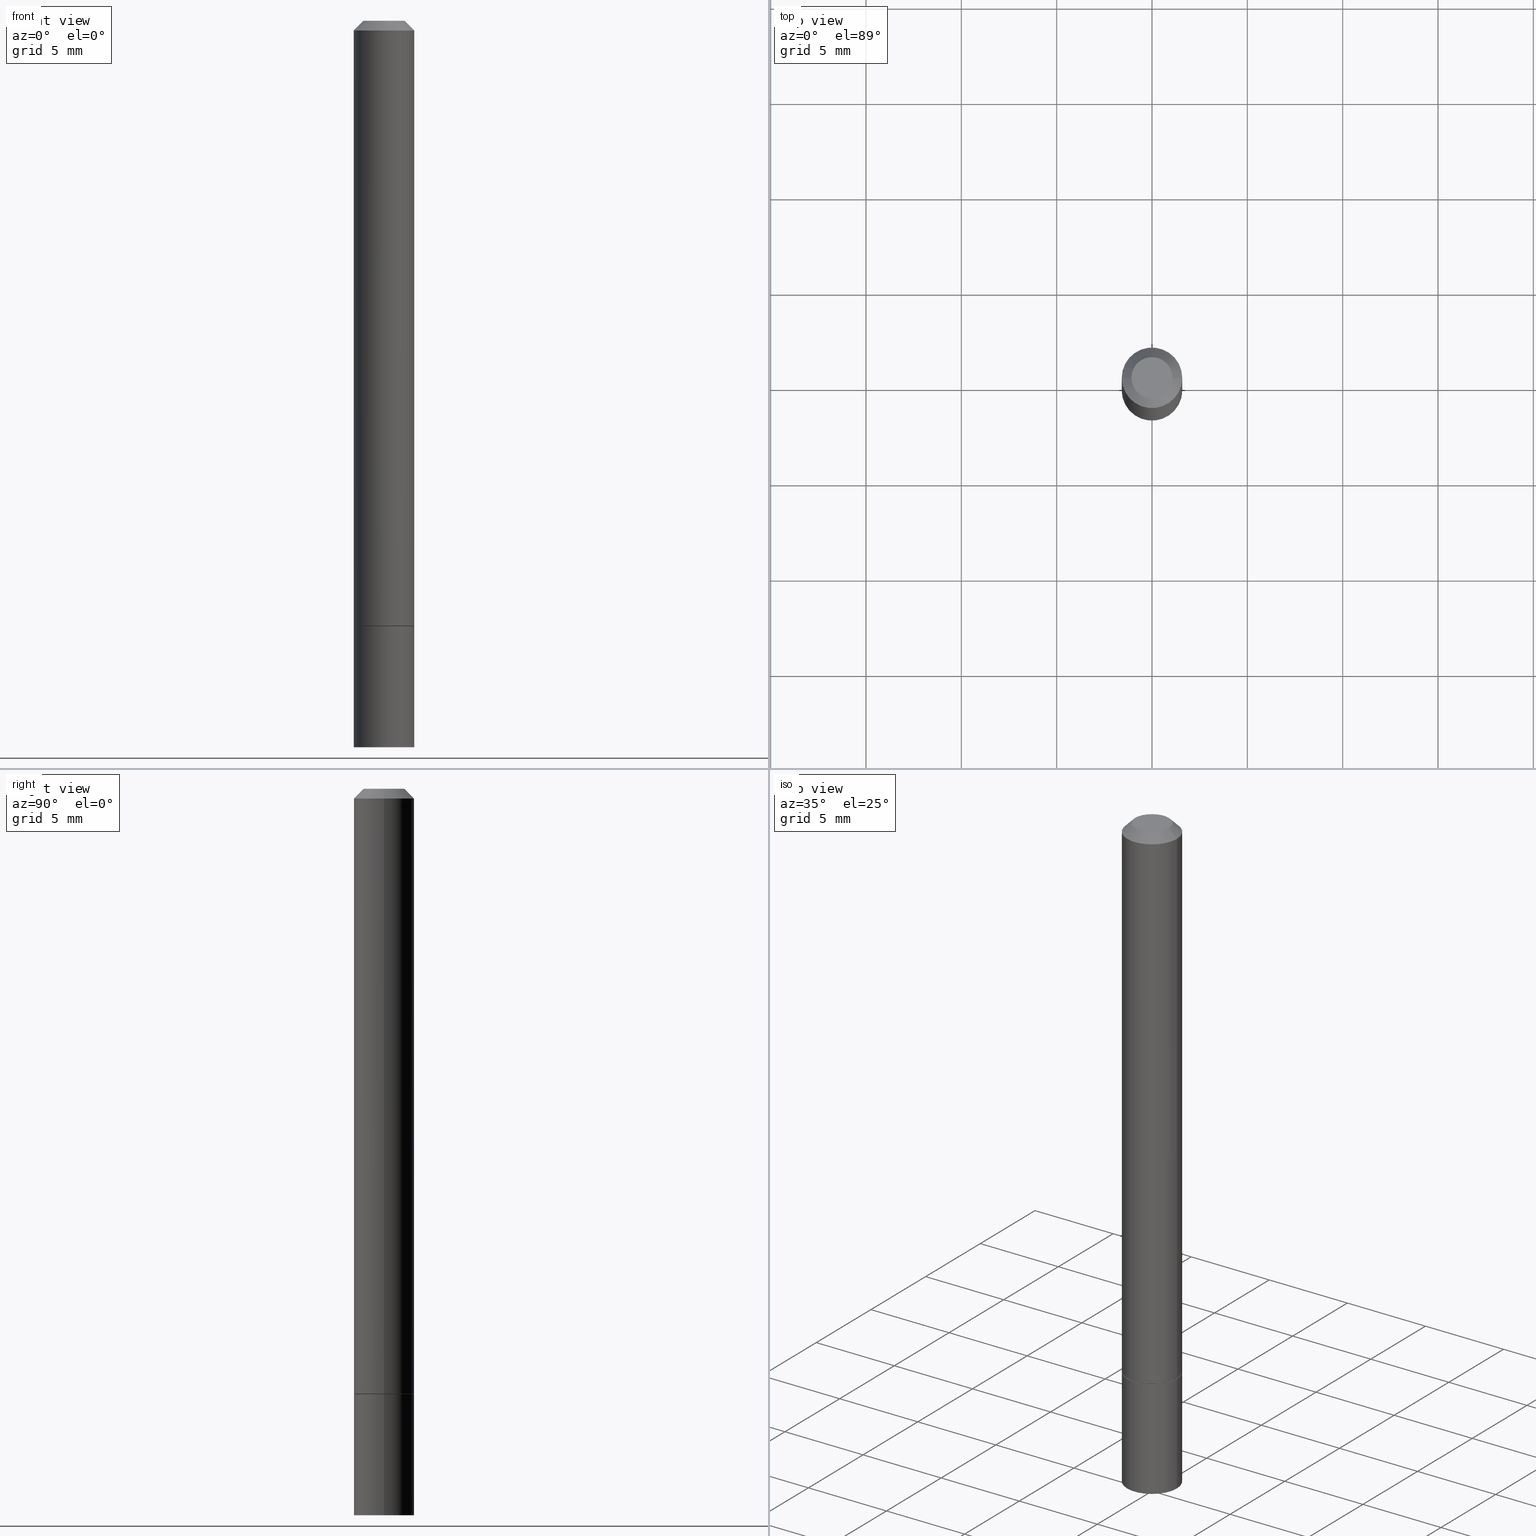
[diagram: canonical four-view strip — front | top / right | iso, engineering-drawing reading convention]
A machine part, canonical four-view strip (front | top / right | iso — engineering-drawing reading convention). The complete STEP part file that produces these views, byte-faithful:
ISO-10303-21;
HEADER;
FILE_DESCRIPTION (( 'STEP AP203' ),
    '1' );
FILE_NAME ('31705.STEP',
    '2024-02-27T13:14:47',
    ( '' ),
    ( '' ),
    'SwSTEP 2.0',
    'SolidWorks 2023',
    '' );
FILE_SCHEMA (( 'CONFIG_CONTROL_DESIGN' ));
ENDSEC;

DATA;
#1 = PRODUCT_RELATED_PRODUCT_CATEGORY ( 'detail', '', ( #160 ) ) ;
#2 = SECURITY_CLASSIFICATION_LEVEL ( 'unclassified' ) ;
#3 = CARTESIAN_POINT ( 'NONE',  ( 9.394662729016977403E-46, -1.341308853342402453E-31, -3.841661241090370459E-17 ) ) ;
#4 = AXIS2_PLACEMENT_3D ( 'NONE', #127, #197, #107 ) ;
#5 = ORIENTED_EDGE ( 'NONE', *, *, #173, .T. ) ;
#6 = DIRECTION ( 'NONE',  ( -2.445468806185136597E-29, 3.491481338843145583E-15, 1.000000000000000000 ) ) ;
#7 = EDGE_CURVE ( 'NONE', #62, #305, #114, .T. ) ;
#8 = CLOSED_SHELL ( 'NONE', ( #19, #116, #201, #289, #49, #101, #189, #292 ) ) ;
#9 = LOCAL_TIME ( 8, 14, 47.00000000000000000, #271 ) ;
#10 = DIRECTION ( 'NONE',  ( 1.000000000000000000, -6.982962677686267499E-15, 4.870577812114081924E-29 ) ) ;
#11 = DIRECTION ( 'NONE',  ( 1.000000000000000000, -6.982962677686267499E-15, 4.876176775795935793E-29 ) ) ;
#12 = APPROVAL ( #203, 'UNSPECIFIED' ) ;
#13 = AXIS2_PLACEMENT_3D ( 'NONE', #262, #348, #36 ) ;
#14 = DIRECTION ( 'NONE',  ( 1.000000000000000000, -6.982962677686261189E-15, 0.000000000000000000 ) ) ;
#15 = VERTEX_POINT ( 'NONE', #217 ) ;
#16 = DIRECTION ( 'NONE',  ( -2.445468806185136877E-29, 3.491481338843145188E-15, 1.000000000000000000 ) ) ;
#17 = AXIS2_PLACEMENT_3D ( 'NONE', #304, #166, #58 ) ;
#18 = VECTOR ( 'NONE', #46, 39.37007874015748143 ) ;
#19 = ADVANCED_FACE ( 'NONE', ( #100 ), #277, .T. ) ;
#20 = LINE ( 'NONE', #226, #122 ) ;
#21 = CALENDAR_DATE ( 2024, 27, 2 ) ;
#22 = DIRECTION ( 'NONE',  ( -2.445468806185136597E-29, 3.491481338843145583E-15, 1.000000000000000000 ) ) ;
#23 = CARTESIAN_POINT ( 'NONE',  ( -0.04250000000000002387, 3.316907271900973138E-16, -3.841661241090589861E-17 ) ) ;
#24 = AXIS2_PLACEMENT_3D ( 'NONE', #3, #224, #137 ) ;
#25 = LOCAL_TIME ( 8, 14, 47.00000000000000000, #300 ) ;
#26 = PERSON_AND_ORGANIZATION_ROLE ( 'design_owner' ) ;
#27 = EDGE_CURVE ( 'NONE', #205, #305, #141, .T. ) ;
#28 = ORIENTED_EDGE ( 'NONE', *, *, #95, .F. ) ;
#29 = DIRECTION ( 'NONE',  ( -1.000000000000000000, 6.982962677686265922E-15, -4.876176775795935793E-29 ) ) ;
#30 = CARTESIAN_POINT ( 'NONE',  ( 0.000000000000000000, 0.000000000000000000, 0.000000000000000000 ) ) ;
#31 = EDGE_LOOP ( 'NONE', ( #42, #93, #188, #163 ) ) ;
#32 = CYLINDRICAL_SURFACE ( 'NONE', #211, 0.06250000000000001388 ) ;
#33 = LINE ( 'NONE', #288, #115 ) ;
#34 = APPROVAL_ROLE ( '' ) ;
#35 = CARTESIAN_POINT ( 'NONE',  ( 0.06250000000000001388, -4.364351673553918173E-16, 3.047610484872460571E-30 ) ) ;
#36 = DIRECTION ( 'NONE',  ( 1.000000000000000000, -6.982962677686269077E-15, 0.000000000000000000 ) ) ;
#37 = ADVANCED_FACE ( 'NONE', ( #363 ), #333, .F. ) ;
#38 = DIRECTION ( 'NONE',  ( -2.445468806185136597E-29, 3.491481338843145583E-15, 1.000000000000000000 ) ) ;
#39 = EDGE_LOOP ( 'NONE', ( #246, #94 ) ) ;
#40 = DIRECTION ( 'NONE',  ( 1.000000000000000000, -6.982962677686261189E-15, 0.000000000000000000 ) ) ;
#41 =( LENGTH_UNIT ( ) NAMED_UNIT ( * ) SI_UNIT ( $, .METRE. ) );
#42 = ORIENTED_EDGE ( 'NONE', *, *, #236, .T. ) ;
#43 = PERSON_AND_ORGANIZATION_ROLE ( 'creator' ) ;
#44 = DIRECTION ( 'NONE',  ( -2.445468806185136877E-29, 3.491481338843145188E-15, 1.000000000000000000 ) ) ;
#45 = ORIENTED_EDGE ( 'NONE', *, *, #7, .F. ) ;
#46 = DIRECTION ( 'NONE',  ( -0.7071067811866441621, 7.493145998870704414E-15, 0.7071067811864508723 ) ) ;
#47 = DIRECTION ( 'NONE',  ( 1.000000000000000000, -6.982962677686266711E-15, 0.000000000000000000 ) ) ;
#48 = PERSON_AND_ORGANIZATION ( #68, #233 ) ;
#49 = ADVANCED_FACE ( 'NONE', ( #52 ), #249, .T. ) ;
#50 = CIRCLE ( 'NONE', #255, 0.06250000000000008327 ) ;
#51 = ORIENTED_EDGE ( 'NONE', *, *, #69, .T. ) ;
#52 = FACE_OUTER_BOUND ( 'NONE', #248, .T. ) ;
#53 = DIRECTION ( 'NONE',  ( 1.000000000000000000, -6.982962677686267499E-15, 4.876176775795935793E-29 ) ) ;
#54 = ADVANCED_BREP_SHAPE_REPRESENTATION ( '31705', ( #191, #309, #306 ), #278 ) ;
#55 = EDGE_CURVE ( 'NONE', #215, #205, #366, .T. ) ;
#56 = ORIENTED_EDGE ( 'NONE', *, *, #83, .F. ) ;
#57 = CARTESIAN_POINT ( 'NONE',  ( 0.000000000000000000, 0.000000000000000000, 0.000000000000000000 ) ) ;
#58 = DIRECTION ( 'NONE',  ( 1.000000000000000000, -6.982962677686268288E-15, 0.000000000000000000 ) ) ;
#59 = CC_DESIGN_PERSON_AND_ORGANIZATION_ASSIGNMENT ( #111, #106, ( #162 ) ) ;
#60 = AXIS2_PLACEMENT_3D ( 'NONE', #227, #22, #272 ) ;
#61 = APPROVAL_PERSON_ORGANIZATION ( #344, #12, #238 ) ;
#62 = VERTEX_POINT ( 'NONE', #308 ) ;
#63 = ADVANCED_FACE ( 'NONE', ( #202 ), #172, .T. ) ;
#64 = AXIS2_PLACEMENT_3D ( 'NONE', #113, #6, #117 ) ;
#65 = ORIENTED_EDGE ( 'NONE', *, *, #329, .T. ) ;
#66 = PRODUCT_DEFINITION_SHAPE ( 'NONE', 'NONE',  #158 ) ;
#67 = EDGE_LOOP ( 'NONE', ( #51, #5 ) ) ;
#68 = PERSON ( 'UNSPECIFIED', 'UNSPECIFIED', 'UNSPECIFIED', ('UNSPECIFIED'), ('UNSPECIFIED'), ('UNSPECIFIED') ) ;
#69 = EDGE_CURVE ( 'NONE', #301, #62, #225, .T. ) ;
#70 = VERTEX_POINT ( 'NONE', #234 ) ;
#71 = PERSON_AND_ORGANIZATION ( #68, #233 ) ;
#72 = AXIS2_PLACEMENT_3D ( 'NONE', #214, #92, #265 ) ;
#73 = CARTESIAN_POINT ( 'NONE',  ( 3.668203209277704895E-29, -5.237222008264718177E-15, -1.500000000000000222 ) ) ;
#74 = CARTESIAN_POINT ( 'NONE',  ( 3.056836007731420185E-29, -4.364351673553931682E-15, -1.249999999999999778 ) ) ;
#75 = CARTESIAN_POINT ( 'NONE',  ( -0.06250000000000001388, 4.440892098500627148E-16, -3.074334431409317165E-30 ) ) ;
#76 = DIRECTION ( 'NONE',  ( -2.445468806185136877E-29, 3.491481338843145188E-15, 1.000000000000000000 ) ) ;
#77 = CC_DESIGN_PERSON_AND_ORGANIZATION_ASSIGNMENT ( #164, #43, ( #158 ) ) ;
#78 = CARTESIAN_POINT ( 'NONE',  ( 3.056836007731421306E-29, -4.364351673553932471E-15, -1.250000000000000000 ) ) ;
#79 = DIRECTION ( 'NONE',  ( -2.445468806185136597E-29, 3.491481338843145583E-15, 1.000000000000000000 ) ) ;
#80 = AXIS2_PLACEMENT_3D ( 'NONE', #230, #199, #168 ) ;
#81 = APPLICATION_CONTEXT ( 'configuration controlled 3d designs of mechanical parts and assemblies' ) ;
#82 = CALENDAR_DATE ( 2024, 27, 2 ) ;
#83 = EDGE_CURVE ( 'NONE', #301, #205, #20, .T. ) ;
#84 = DATE_AND_TIME ( #82, #134 ) ;
#85 = APPROVAL_STATUS ( 'not_yet_approved' ) ;
#86 = ORIENTED_EDGE ( 'NONE', *, *, #316, .T. ) ;
#87 = CLOSED_SHELL ( 'NONE', ( #210, #63, #37, #318 ) ) ;
#88 = ORIENTED_EDGE ( 'NONE', *, *, #187, .T. ) ;
#89 = DESIGN_CONTEXT ( 'detailed design', #81, 'design' ) ;
#90 = FACE_OUTER_BOUND ( 'NONE', #67, .T. ) ;
#91 = EDGE_LOOP ( 'NONE', ( #131, #356, #322, #212 ) ) ;
#92 = DIRECTION ( 'NONE',  ( -2.445468806185136597E-29, 3.491481338843145583E-15, 1.000000000000000000 ) ) ;
#93 = ORIENTED_EDGE ( 'NONE', *, *, #55, .T. ) ;
#94 = ORIENTED_EDGE ( 'NONE', *, *, #283, .F. ) ;
#95 = EDGE_CURVE ( 'NONE', #251, #156, #298, .T. ) ;
#96 = DIRECTION ( 'NONE',  ( 2.438088387897960049E-29, -3.491481338843145188E-15, -1.000000000000000000 ) ) ;
#97 = DIRECTION ( 'NONE',  ( -2.445468806185136597E-29, 3.491481338843145583E-15, 1.000000000000000000 ) ) ;
#98 = CONICAL_SURFACE ( 'NONE', #313, 0.06249999999999995143, 0.7853981633974460586 ) ;
#99 = LOCAL_TIME ( 8, 14, 47.00000000000000000, #140 ) ;
#100 = FACE_OUTER_BOUND ( 'NONE', #109, .T. ) ;
#101 = ADVANCED_FACE ( 'NONE', ( #147 ), #177, .T. ) ;
#102 = VERTEX_POINT ( 'NONE', #286 ) ;
#103 = ORIENTED_EDGE ( 'NONE', *, *, #229, .T. ) ;
#104 = DIRECTION ( 'NONE',  ( 1.000000000000000000, -6.982962677686268288E-15, 0.000000000000000000 ) ) ;
#105 = APPROVAL_DATE_TIME ( #303, #254 ) ;
#106 = PERSON_AND_ORGANIZATION_ROLE ( 'classification_officer' ) ;
#107 = DIRECTION ( 'NONE',  ( 1.000000000000000000, -6.982962677686267499E-15, 4.876176775795935793E-29 ) ) ;
#108 = APPROVAL_PERSON_ORGANIZATION ( #71, #254, #135 ) ;
#109 = EDGE_LOOP ( 'NONE', ( #319, #121, #228, #337 ) ) ;
#110 = FACE_OUTER_BOUND ( 'NONE', #295, .T. ) ;
#111 = PERSON_AND_ORGANIZATION ( #68, #233 ) ;
#112 = CARTESIAN_POINT ( 'NONE',  ( -0.06150000000000001299, -3.922069436713247672E-15, -1.249999999999999778 ) ) ;
#113 = CARTESIAN_POINT ( 'NONE',  ( 3.056836007731421306E-29, -4.364351673553932471E-15, -1.250000000000000000 ) ) ;
#114 = LINE ( 'NONE', #237, #161 ) ;
#115 = VECTOR ( 'NONE', #76, 39.37007874015748143 ) ;
#116 = ADVANCED_FACE ( 'NONE', ( #291 ), #32, .T. ) ;
#117 = DIRECTION ( 'NONE',  ( 1.000000000000000000, -6.982962677686269077E-15, 0.000000000000000000 ) ) ;
#118 = DIMENSIONAL_EXPONENTS ( 1.000000000000000000, 0.000000000000000000, 0.000000000000000000, 0.000000000000000000, 0.000000000000000000, 0.000000000000000000, 0.000000000000000000 ) ;
#119 = CARTESIAN_POINT ( 'NONE',  ( -0.06249999999999995143, 3.666055405785282233E-16, -0.02000000000000005246 ) ) ;
#120 = CC_DESIGN_DATE_AND_TIME_ASSIGNMENT ( #129, #358, ( #158 ) ) ;
#121 = ORIENTED_EDGE ( 'NONE', *, *, #354, .T. ) ;
#122 = VECTOR ( 'NONE', #331, 39.37007874015748143 ) ;
#123 = CC_DESIGN_PERSON_AND_ORGANIZATION_ASSIGNMENT ( #136, #253, ( #294 ) ) ;
#124 = AXIS2_PLACEMENT_3D ( 'NONE', #148, #260, #10 ) ;
#125 = DIRECTION ( 'NONE',  ( -2.445468806185136597E-29, 3.491481338843145583E-15, 1.000000000000000000 ) ) ;
#126 = CARTESIAN_POINT ( 'NONE',  ( 0.000000000000000000, 0.000000000000000000, 0.000000000000000000 ) ) ;
#127 = CARTESIAN_POINT ( 'NONE',  ( 0.000000000000000000, 0.000000000000000000, 0.000000000000000000 ) ) ;
#128 = APPLICATION_CONTEXT ( 'configuration controlled 3d designs of mechanical parts and assemblies' ) ;
#129 = DATE_AND_TIME ( #21, #9 ) ;
#130 = CARTESIAN_POINT ( 'NONE',  ( 4.890937612370285420E-31, -6.982962677686308865E-17, -0.02000000000000005246 ) ) ;
#131 = ORIENTED_EDGE ( 'NONE', *, *, #222, .F. ) ;
#132 = CARTESIAN_POINT ( 'NONE',  ( 0.06249999999999995143, -4.986107516375834292E-16, -0.02000000000000005246 ) ) ;
#133 = CIRCLE ( 'NONE', #170, 0.06150000000000001299 ) ;
#134 = LOCAL_TIME ( 8, 14, 47.00000000000000000, #342 ) ;
#135 = APPROVAL_ROLE ( '' ) ;
#136 = PERSON_AND_ORGANIZATION ( #68, #233 ) ;
#137 = DIRECTION ( 'NONE',  ( 1.000000000000000000, -6.982962677686267499E-15, 4.870577812114081924E-29 ) ) ;
#138 = ORIENTED_EDGE ( 'NONE', *, *, #275, .T. ) ;
#139 = EDGE_CURVE ( 'NONE', #144, #305, #33, .T. ) ;
#140 = COORDINATED_UNIVERSAL_TIME_OFFSET ( 5, 0, .BEHIND. ) ;
#141 = CIRCLE ( 'NONE', #243, 0.06249999999999995143 ) ;
#142 = DIRECTION ( 'NONE',  ( 1.000000000000000000, -6.982962677686268288E-15, 0.000000000000000000 ) ) ;
#143 = LOCAL_TIME ( 8, 14, 47.00000000000000000, #157 ) ;
#144 = VERTEX_POINT ( 'NONE', #179 ) ;
#145 = DIRECTION ( 'NONE',  ( -2.445468806185136877E-29, 3.491481338843145188E-15, 1.000000000000000000 ) ) ;
#146 = UNCERTAINTY_MEASURE_WITH_UNIT (LENGTH_MEASURE( 1.000000000000000082E-05 ), #355, 'distance_accuracy_value', 'NONE');
#147 = FACE_OUTER_BOUND ( 'NONE', #324, .T. ) ;
#148 = CARTESIAN_POINT ( 'NONE',  ( 9.394662729016977403E-46, -1.341308853342402453E-31, -3.841661241090370459E-17 ) ) ;
#149 = CARTESIAN_POINT ( 'NONE',  ( 4.890937612370285420E-31, -6.982962677686308865E-17, -0.02000000000000005246 ) ) ;
#150 = APPROVAL ( #85, 'UNSPECIFIED' ) ;
#151 = DATE_AND_TIME ( #320, #143 ) ;
#152 = DIRECTION ( 'NONE',  ( -1.000000000000000000, 6.982962677686266711E-15, 0.000000000000000000 ) ) ;
#153 = CIRCLE ( 'NONE', #360, 0.06250000000000001388 ) ;
#154 = CC_DESIGN_SECURITY_CLASSIFICATION ( #162, ( #294 ) ) ;
#155 = CARTESIAN_POINT ( 'NONE',  ( 2.967759138016664535E-16, 0.04250000000000002387, -1.675962631062856399E-16 ) ) ;
#156 = VERTEX_POINT ( 'NONE', #112 ) ;
#157 = COORDINATED_UNIVERSAL_TIME_OFFSET ( 5, 0, .BEHIND. ) ;
#158 = PRODUCT_DEFINITION ( 'UNKNOWN', '', #294, #89 ) ;
#159 = CARTESIAN_POINT ( 'NONE',  ( 0.06150000000000001299, -4.793803878231636549E-15, -1.249999999999999778 ) ) ;
#160 = PRODUCT ( '31705', '31705', '', ( #223 ) ) ;
#161 = VECTOR ( 'NONE', #180, 39.37007874015748143 ) ;
#162 = SECURITY_CLASSIFICATION ( '', '', #2 ) ;
#163 = ORIENTED_EDGE ( 'NONE', *, *, #139, .F. ) ;
#164 = PERSON_AND_ORGANIZATION ( #68, #233 ) ;
#165 = DIRECTION ( 'NONE',  ( -1.000000000000000000, 6.982962677686265922E-15, -4.876176775795935793E-29 ) ) ;
#166 = DIRECTION ( 'NONE',  ( -2.445468806185136597E-29, 3.491481338843145583E-15, 1.000000000000000000 ) ) ;
#167 = ORIENTED_EDGE ( 'NONE', *, *, #27, .F. ) ;
#168 = DIRECTION ( 'NONE',  ( 1.000000000000000000, -6.982962677686267499E-15, 4.876176775795935793E-29 ) ) ;
#169 = AXIS2_PLACEMENT_3D ( 'NONE', #57, #79, #53 ) ;
#170 = AXIS2_PLACEMENT_3D ( 'NONE', #74, #125, #104 ) ;
#171 = CARTESIAN_POINT ( 'NONE',  ( 4.364351673554222871E-16, 0.06249999999999565625, -1.250000000000000222 ) ) ;
#172 = PLANE ( 'NONE',  #207 ) ;
#173 = EDGE_CURVE ( 'NONE', #62, #301, #290, .T. ) ;
#174 = CARTESIAN_POINT ( 'NONE',  ( -0.06250000000000008327, -1.771255699645910018E-15, -1.248999999999999888 ) ) ;
#175 = VERTEX_POINT ( 'NONE', #235 ) ;
#176 = CALENDAR_DATE ( 2024, 27, 2 ) ;
#177 = CONICAL_SURFACE ( 'NONE', #219, 0.06150000000000001299, 0.7853981633975849475 ) ;
#178 = CARTESIAN_POINT ( 'NONE',  ( -0.06250000000000001388, 4.440892098500627148E-16, -3.074334431409317165E-30 ) ) ;
#179 = CARTESIAN_POINT ( 'NONE',  ( 0.06250000000000008327, -4.797295359570480345E-15, -1.248999999999999888 ) ) ;
#180 = DIRECTION ( 'NONE',  ( 0.7071067811865459074, -7.319954787623249734E-15, -0.7071067811865491270 ) ) ;
#181 = PERSON_AND_ORGANIZATION_ROLE ( 'creator' ) ;
#182 = DIRECTION ( 'NONE',  ( -2.445468806185136597E-29, 3.491481338843145583E-15, 1.000000000000000000 ) ) ;
#183 = CIRCLE ( 'NONE', #299, 0.06250000000000008327 ) ;
#184 = FACE_OUTER_BOUND ( 'NONE', #312, .T. ) ;
#185 = PLANE ( 'NONE',  #263 ) ;
#186 = ORIENTED_EDGE ( 'NONE', *, *, #139, .T. ) ;
#187 = EDGE_CURVE ( 'NONE', #70, #15, #239, .T. ) ;
#188 = ORIENTED_EDGE ( 'NONE', *, *, #329, .F. ) ;
#189 = ADVANCED_FACE ( 'NONE', ( #240 ), #204, .F. ) ;
#190 = ORIENTED_EDGE ( 'NONE', *, *, #340, .T. ) ;
#191 = MANIFOLD_SOLID_BREP ( 'Body-Move/Copy2[1]', #87 ) ;
#192 = CIRCLE ( 'NONE', #72, 0.06250000000000001388 ) ;
#193 = APPROVAL_STATUS ( 'not_yet_approved' ) ;
#194 = ORIENTED_EDGE ( 'NONE', *, *, #340, .F. ) ;
#195 = APPLICATION_PROTOCOL_DEFINITION ( 'international standard', 'config_control_design', 1994, #81 ) ;
#196 = APPLICATION_PROTOCOL_DEFINITION ( 'international standard', 'config_control_design', 1994, #128 ) ;
#197 = DIRECTION ( 'NONE',  ( -2.445468806185136597E-29, 3.491481338843145583E-15, 1.000000000000000000 ) ) ;
#198 = ORIENTED_EDGE ( 'NONE', *, *, #173, .F. ) ;
#199 = DIRECTION ( 'NONE',  ( -2.445468806185136597E-29, 3.491481338843145583E-15, 1.000000000000000000 ) ) ;
#200 = VECTOR ( 'NONE', #145, 39.37007874015748143 ) ;
#201 = ADVANCED_FACE ( 'NONE', ( #110 ), #328, .T. ) ;
#202 = FACE_OUTER_BOUND ( 'NONE', #39, .T. ) ;
#203 = APPROVAL_STATUS ( 'not_yet_approved' ) ;
#204 = PLANE ( 'NONE',  #266 ) ;
#205 = VERTEX_POINT ( 'NONE', #119 ) ;
#206 = DIRECTION ( 'NONE',  ( -2.438088387897960049E-29, 3.491481338843145188E-15, 1.000000000000000000 ) ) ;
#207 = AXIS2_PLACEMENT_3D ( 'NONE', #281, #269, #29 ) ;
#208 = DIRECTION ( 'NONE',  ( 0.7071067811866441621, -2.468850131083269169E-15, 0.7071067811864508723 ) ) ;
#209 = SHAPE_DEFINITION_REPRESENTATION ( #66, #54 ) ;
#210 = ADVANCED_FACE ( 'NONE', ( #261 ), #338, .T. ) ;
#211 = AXIS2_PLACEMENT_3D ( 'NONE', #30, #343, #11 ) ;
#212 = ORIENTED_EDGE ( 'NONE', *, *, #187, .F. ) ;
#213 = PERSON_AND_ORGANIZATION ( #68, #233 ) ;
#214 = CARTESIAN_POINT ( 'NONE',  ( 3.668203209277704895E-29, -5.237222008264718177E-15, -1.500000000000000222 ) ) ;
#215 = VERTEX_POINT ( 'NONE', #174 ) ;
#216 = CARTESIAN_POINT ( 'NONE',  ( 4.890937612370285420E-31, -6.982962677686308865E-17, -0.02000000000000005246 ) ) ;
#217 = CARTESIAN_POINT ( 'NONE',  ( 0.06250000000000001388, -4.800786840909324141E-15, -1.250000000000000000 ) ) ;
#218 = EDGE_LOOP ( 'NONE', ( #86, #273, #285, #353 ) ) ;
#219 = AXIS2_PLACEMENT_3D ( 'NONE', #257, #182, #142 ) ;
#220 = CC_DESIGN_APPROVAL ( #12, ( #294 ) ) ;
#221 =( NAMED_UNIT ( * ) PLANE_ANGLE_UNIT ( ) SI_UNIT ( $, .RADIAN. ) );
#222 = EDGE_CURVE ( 'NONE', #102, #70, #284, .T. ) ;
#223 = MECHANICAL_CONTEXT ( 'NONE', #128, 'mechanical' ) ;
#224 = DIRECTION ( 'NONE',  ( -2.445468806185136597E-29, 3.491481338843145583E-15, 1.000000000000000000 ) ) ;
#225 = CIRCLE ( 'NONE', #24, 0.04250000000000002387 ) ;
#226 = CARTESIAN_POINT ( 'NONE',  ( -0.06249999999999995143, 3.666055405785282233E-16, -0.02000000000000005246 ) ) ;
#227 = CARTESIAN_POINT ( 'NONE',  ( 3.056836007731420185E-29, -4.364351673553931682E-15, -1.249999999999999778 ) ) ;
#228 = ORIENTED_EDGE ( 'NONE', *, *, #236, .F. ) ;
#229 = EDGE_CURVE ( 'NONE', #251, #144, #256, .T. ) ;
#230 = CARTESIAN_POINT ( 'NONE',  ( 0.000000000000000000, 0.000000000000000000, 0.000000000000000000 ) ) ;
#231 = EDGE_LOOP ( 'NONE', ( #28, #194 ) ) ;
#232 = CIRCLE ( 'NONE', #13, 0.06250000000000001388 ) ;
#233 = ORGANIZATION ( 'UNSPECIFIED', 'UNSPECIFIED', '' ) ;
#234 = CARTESIAN_POINT ( 'NONE',  ( -0.06250000000000001388, -4.356697631059263102E-15, -1.250000000000000000 ) ) ;
#235 = CARTESIAN_POINT ( 'NONE',  ( 0.06250000000000001388, -5.673657175620109846E-15, -1.500000000000000222 ) ) ;
#236 = EDGE_CURVE ( 'NONE', #144, #215, #50, .T. ) ;
#237 = CARTESIAN_POINT ( 'NONE',  ( 0.06249999999999995143, -4.986107516375834292E-16, -0.02000000000000005246 ) ) ;
#238 = APPROVAL_ROLE ( '' ) ;
#239 = CIRCLE ( 'NONE', #64, 0.06250000000000001388 ) ;
#240 = FACE_OUTER_BOUND ( 'NONE', #231, .T. ) ;
#241 = EDGE_CURVE ( 'NONE', #175, #15, #352, .T. ) ;
#242 = DIRECTION ( 'NONE',  ( 2.445468806185136597E-29, -3.491481338843145583E-15, -1.000000000000000000 ) ) ;
#243 = AXIS2_PLACEMENT_3D ( 'NONE', #130, #276, #47 ) ;
#244 = CC_DESIGN_PERSON_AND_ORGANIZATION_ASSIGNMENT ( #317, #181, ( #294 ) ) ;
#245 = APPROVAL_DATE_TIME ( #151, #150 ) ;
#246 = ORIENTED_EDGE ( 'NONE', *, *, #316, .F. ) ;
#247 = VECTOR ( 'NONE', #44, 39.37007874015748143 ) ;
#248 = EDGE_LOOP ( 'NONE', ( #350, #361, #186, #167 ) ) ;
#249 = CYLINDRICAL_SURFACE ( 'NONE', #4, 0.06250000000000001388 ) ;
#250 = CIRCLE ( 'NONE', #293, 0.06249999999999995143 ) ;
#251 = VERTEX_POINT ( 'NONE', #159 ) ;
#252 = CALENDAR_DATE ( 2024, 27, 2 ) ;
#253 = PERSON_AND_ORGANIZATION_ROLE ( 'design_supplier' ) ;
#254 = APPROVAL ( #193, 'UNSPECIFIED' ) ;
#255 = AXIS2_PLACEMENT_3D ( 'NONE', #315, #296, #40 ) ;
#256 = LINE ( 'NONE', #339, #336 ) ;
#257 = CARTESIAN_POINT ( 'NONE',  ( 3.056836007731420185E-29, -4.364351673553931682E-15, -1.249999999999999778 ) ) ;
#258 = ORIENTED_EDGE ( 'NONE', *, *, #267, .F. ) ;
#259 = VECTOR ( 'NONE', #16, 39.37007874015748143 ) ;
#260 = DIRECTION ( 'NONE',  ( -2.445468806185136597E-29, 3.491481338843145583E-15, 1.000000000000000000 ) ) ;
#261 = FACE_OUTER_BOUND ( 'NONE', #218, .T. ) ;
#262 = CARTESIAN_POINT ( 'NONE',  ( 3.056836007731421306E-29, -4.364351673553932471E-15, -1.250000000000000000 ) ) ;
#263 = AXIS2_PLACEMENT_3D ( 'NONE', #155, #96, #165 ) ;
#264 = ORIENTED_EDGE ( 'NONE', *, *, #69, .F. ) ;
#265 = DIRECTION ( 'NONE',  ( 1.000000000000000000, -6.982962677686261189E-15, 0.000000000000000000 ) ) ;
#266 = AXIS2_PLACEMENT_3D ( 'NONE', #78, #206, #345 ) ;
#267 = EDGE_CURVE ( 'NONE', #215, #144, #183, .T. ) ;
#268 = CC_DESIGN_APPROVAL ( #254, ( #158 ) ) ;
#269 = DIRECTION ( 'NONE',  ( 2.438088387897960049E-29, -3.491481338843145188E-15, -1.000000000000000000 ) ) ;
#270 = EDGE_LOOP ( 'NONE', ( #138, #88 ) ) ;
#271 = COORDINATED_UNIVERSAL_TIME_OFFSET ( 5, 0, .BEHIND. ) ;
#272 = DIRECTION ( 'NONE',  ( 1.000000000000000000, -6.982962677686268288E-15, 0.000000000000000000 ) ) ;
#273 = ORIENTED_EDGE ( 'NONE', *, *, #222, .T. ) ;
#274 = DIRECTION ( 'NONE',  ( 1.000000000000000000, -6.982962677686266711E-15, 0.000000000000000000 ) ) ;
#275 = EDGE_CURVE ( 'NONE', #15, #70, #232, .T. ) ;
#276 = DIRECTION ( 'NONE',  ( -2.445468806185136597E-29, 3.491481338843145583E-15, 1.000000000000000000 ) ) ;
#277 = CONICAL_SURFACE ( 'NONE', #60, 0.06150000000000001299, 0.7853981633975849475 ) ;
#278 =( GEOMETRIC_REPRESENTATION_CONTEXT ( 3 ) GLOBAL_UNCERTAINTY_ASSIGNED_CONTEXT ( ( #146 ) ) GLOBAL_UNIT_ASSIGNED_CONTEXT ( ( #355, #221, #330 ) ) REPRESENTATION_CONTEXT ( 'NONE', 'WORKASPACE' ) );
#279 = DIRECTION ( 'NONE',  ( 1.000000000000000000, 0.000000000000000000, 0.000000000000000000 ) ) ;
#280 = DIRECTION ( 'NONE',  ( -2.445468806185136597E-29, 3.491481338843145583E-15, 1.000000000000000000 ) ) ;
#281 = CARTESIAN_POINT ( 'NONE',  ( 4.364351673554284500E-16, 0.06249999999999478195, -1.500000000000000444 ) ) ;
#282 = ORIENTED_EDGE ( 'NONE', *, *, #83, .T. ) ;
#283 = EDGE_CURVE ( 'NONE', #102, #175, #192, .T. ) ;
#284 = LINE ( 'NONE', #178, #200 ) ;
#285 = ORIENTED_EDGE ( 'NONE', *, *, #275, .F. ) ;
#286 = CARTESIAN_POINT ( 'NONE',  ( -0.06250000000000001388, -4.356697631059263102E-15, -1.500000000000000222 ) ) ;
#287 = APPROVAL_DATE_TIME ( #84, #12 ) ;
#288 = CARTESIAN_POINT ( 'NONE',  ( 0.06250000000000001388, -4.364351673553918173E-16, 3.047610484872460571E-30 ) ) ;
#289 = ADVANCED_FACE ( 'NONE', ( #184 ), #98, .T. ) ;
#290 = CIRCLE ( 'NONE', #124, 0.04250000000000002387 ) ;
#291 = FACE_OUTER_BOUND ( 'NONE', #31, .T. ) ;
#292 = ADVANCED_FACE ( 'NONE', ( #90 ), #185, .F. ) ;
#293 = AXIS2_PLACEMENT_3D ( 'NONE', #335, #280, #274 ) ;
#294 = PRODUCT_DEFINITION_FORMATION_WITH_SPECIFIED_SOURCE ( 'ANY', '', #160, .NOT_KNOWN. ) ;
#295 = EDGE_LOOP ( 'NONE', ( #198, #334, #65, #56 ) ) ;
#296 = DIRECTION ( 'NONE',  ( -2.445468806185136597E-29, 3.491481338843145583E-15, 1.000000000000000000 ) ) ;
#297 = CYLINDRICAL_SURFACE ( 'NONE', #80, 0.06250000000000001388 ) ;
#298 = CIRCLE ( 'NONE', #17, 0.06150000000000001299 ) ;
#299 = AXIS2_PLACEMENT_3D ( 'NONE', #321, #38, #14 ) ;
#300 = COORDINATED_UNIVERSAL_TIME_OFFSET ( 5, 0, .BEHIND. ) ;
#301 = VERTEX_POINT ( 'NONE', #23 ) ;
#302 = ORIENTED_EDGE ( 'NONE', *, *, #27, .T. ) ;
#303 = DATE_AND_TIME ( #252, #25 ) ;
#304 = CARTESIAN_POINT ( 'NONE',  ( 3.056836007731420185E-29, -4.364351673553931682E-15, -1.249999999999999778 ) ) ;
#305 = VERTEX_POINT ( 'NONE', #132 ) ;
#306 = AXIS2_PLACEMENT_3D ( 'NONE', #126, #332, #279 ) ;
#307 = CARTESIAN_POINT ( 'NONE',  ( -0.06150000000000001299, -3.927367891061469286E-15, -1.249999999999999778 ) ) ;
#308 = CARTESIAN_POINT ( 'NONE',  ( 0.04250000000000002387, -3.950909582714369417E-16, -3.841661241090128254E-17 ) ) ;
#309 = MANIFOLD_SOLID_BREP ( 'Body-Move/Copy2[2]', #8 ) ;
#310 = DIRECTION ( 'NONE',  ( 2.445468806185136597E-29, -3.491481338843145583E-15, -1.000000000000000000 ) ) ;
#311 = DIRECTION ( 'NONE',  ( -1.000000000000000000, 6.982962677686266711E-15, 0.000000000000000000 ) ) ;
#312 = EDGE_LOOP ( 'NONE', ( #45, #264, #282, #302 ) ) ;
#313 = AXIS2_PLACEMENT_3D ( 'NONE', #216, #242, #152 ) ;
#314 = CC_DESIGN_APPROVAL ( #150, ( #162 ) ) ;
#315 = CARTESIAN_POINT ( 'NONE',  ( 3.054390538925235704E-29, -4.360860192215088675E-15, -1.248999999999999888 ) ) ;
#316 = EDGE_CURVE ( 'NONE', #175, #102, #153, .T. ) ;
#317 = PERSON_AND_ORGANIZATION ( #68, #233 ) ;
#318 = ADVANCED_FACE ( 'NONE', ( #365 ), #297, .T. ) ;
#319 = ORIENTED_EDGE ( 'NONE', *, *, #95, .T. ) ;
#320 = CALENDAR_DATE ( 2024, 27, 2 ) ;
#321 = CARTESIAN_POINT ( 'NONE',  ( 3.054390538925235704E-29, -4.360860192215088675E-15, -1.248999999999999888 ) ) ;
#322 = ORIENTED_EDGE ( 'NONE', *, *, #241, .T. ) ;
#323 = AXIS2_PLACEMENT_3D ( 'NONE', #171, #327, #359 ) ;
#324 = EDGE_LOOP ( 'NONE', ( #364, #190, #103, #258 ) ) ;
#325 = CC_DESIGN_PERSON_AND_ORGANIZATION_ASSIGNMENT ( #48, #26, ( #160 ) ) ;
#326 = LINE ( 'NONE', #307, #18 ) ;
#327 = DIRECTION ( 'NONE',  ( 2.438088387897960049E-29, -3.491481338843145188E-15, -1.000000000000000000 ) ) ;
#328 = CONICAL_SURFACE ( 'NONE', #341, 0.06249999999999995143, 0.7853981633974460586 ) ;
#329 = EDGE_CURVE ( 'NONE', #305, #205, #250, .T. ) ;
#330 =( NAMED_UNIT ( * ) SI_UNIT ( $, .STERADIAN. ) SOLID_ANGLE_UNIT ( ) );
#331 = DIRECTION ( 'NONE',  ( -0.7071067811865459074, 2.468850131082240100E-15, -0.7071067811865491270 ) ) ;
#332 = DIRECTION ( 'NONE',  ( 0.000000000000000000, 0.000000000000000000, 1.000000000000000000 ) ) ;
#333 = PLANE ( 'NONE',  #323 ) ;
#334 = ORIENTED_EDGE ( 'NONE', *, *, #7, .T. ) ;
#335 = CARTESIAN_POINT ( 'NONE',  ( 4.890937612370285420E-31, -6.982962677686308865E-17, -0.02000000000000005246 ) ) ;
#336 = VECTOR ( 'NONE', #208, 39.37007874015748143 ) ;
#337 = ORIENTED_EDGE ( 'NONE', *, *, #229, .F. ) ;
#338 = CYLINDRICAL_SURFACE ( 'NONE', #169, 0.06250000000000001388 ) ;
#339 = CARTESIAN_POINT ( 'NONE',  ( 0.06150000000000001299, -4.793803878231636549E-15, -1.249999999999999778 ) ) ;
#340 = EDGE_CURVE ( 'NONE', #156, #251, #133, .T. ) ;
#341 = AXIS2_PLACEMENT_3D ( 'NONE', #149, #310, #311 ) ;
#342 = COORDINATED_UNIVERSAL_TIME_OFFSET ( 5, 0, .BEHIND. ) ;
#343 = DIRECTION ( 'NONE',  ( -2.445468806185136597E-29, 3.491481338843145583E-15, 1.000000000000000000 ) ) ;
#344 = PERSON_AND_ORGANIZATION ( #68, #233 ) ;
#345 = DIRECTION ( 'NONE',  ( 1.000000000000000000, -6.982962677686265922E-15, 4.876176775795935793E-29 ) ) ;
#346 = DATE_AND_TIME ( #176, #99 ) ;
#347 = CC_DESIGN_DATE_AND_TIME_ASSIGNMENT ( #346, #351, ( #162 ) ) ;
#348 = DIRECTION ( 'NONE',  ( -2.445468806185136597E-29, 3.491481338843145583E-15, 1.000000000000000000 ) ) ;
#349 = APPROVAL_PERSON_ORGANIZATION ( #213, #150, #34 ) ;
#350 = ORIENTED_EDGE ( 'NONE', *, *, #55, .F. ) ;
#351 = DATE_TIME_ROLE ( 'classification_date' ) ;
#352 = LINE ( 'NONE', #35, #259 ) ;
#353 = ORIENTED_EDGE ( 'NONE', *, *, #241, .F. ) ;
#354 = EDGE_CURVE ( 'NONE', #156, #215, #326, .T. ) ;
#355 =( CONVERSION_BASED_UNIT ( 'INCH', #357 ) LENGTH_UNIT ( ) NAMED_UNIT ( #118 ) );
#356 = ORIENTED_EDGE ( 'NONE', *, *, #283, .T. ) ;
#357 = LENGTH_MEASURE_WITH_UNIT ( LENGTH_MEASURE( 0.02539999999999999897 ), #41 );
#358 = DATE_TIME_ROLE ( 'creation_date' ) ;
#359 = DIRECTION ( 'NONE',  ( -1.000000000000000000, 6.982962677686265922E-15, -4.876176775795935793E-29 ) ) ;
#360 = AXIS2_PLACEMENT_3D ( 'NONE', #73, #97, #362 ) ;
#361 = ORIENTED_EDGE ( 'NONE', *, *, #267, .T. ) ;
#362 = DIRECTION ( 'NONE',  ( 1.000000000000000000, -6.982962677686261189E-15, 0.000000000000000000 ) ) ;
#363 = FACE_OUTER_BOUND ( 'NONE', #270, .T. ) ;
#364 = ORIENTED_EDGE ( 'NONE', *, *, #354, .F. ) ;
#365 = FACE_OUTER_BOUND ( 'NONE', #91, .T. ) ;
#366 = LINE ( 'NONE', #75, #247 ) ;
ENDSEC;
END-ISO-10303-21;
